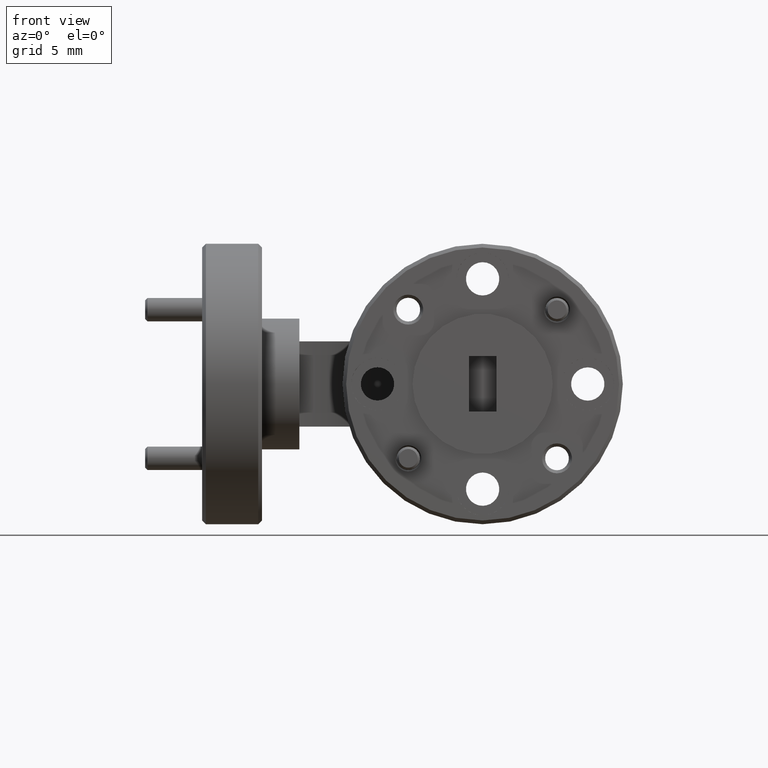
[diagram: clean part render]
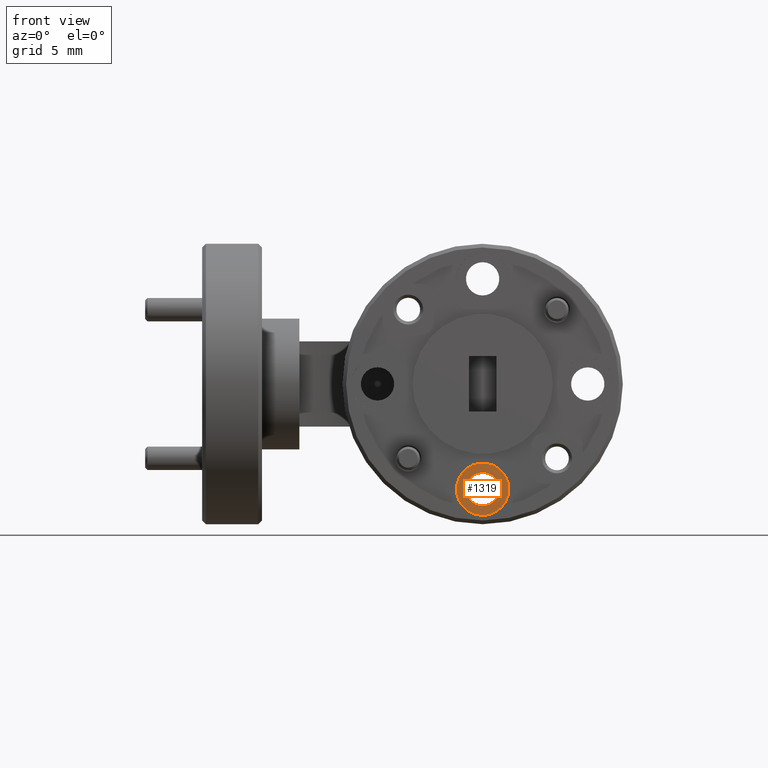
[diagram: same view with one face highlighted and labeled with its STEP entity id]
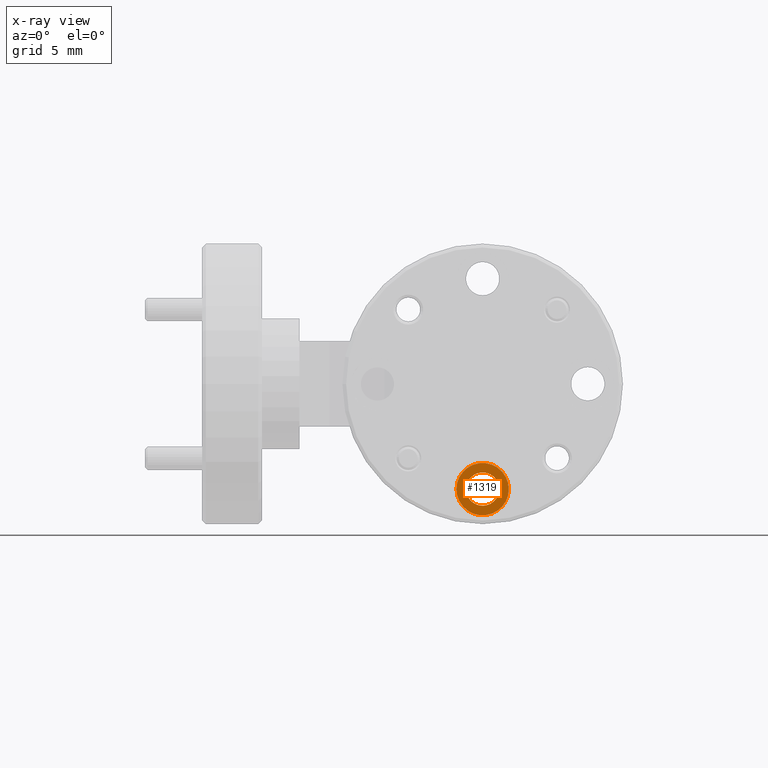
[diagram: x-ray of the same camera — body ghosted, the highlighted face saturated]
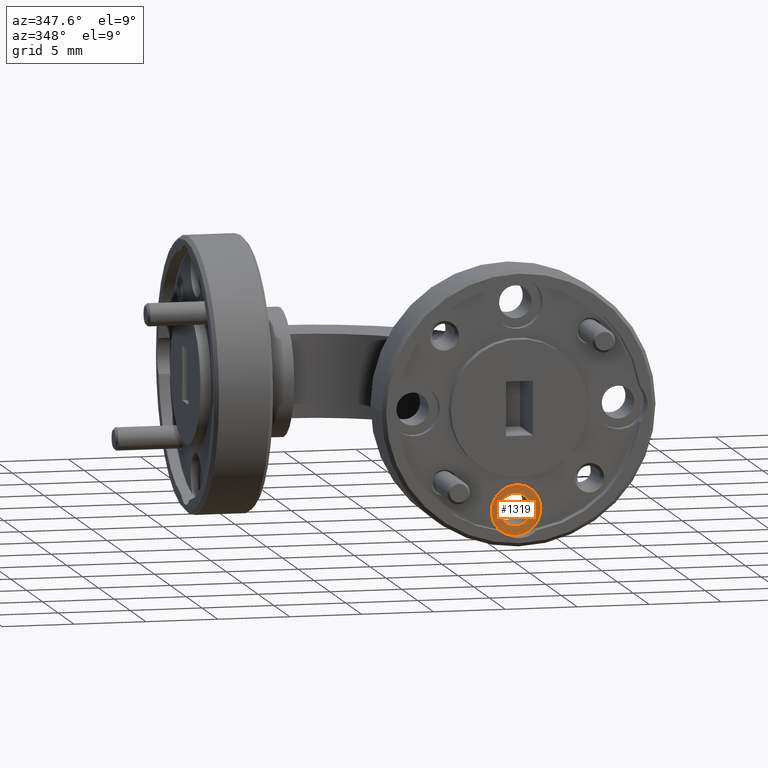
[diagram: same view with one face highlighted and labeled with its STEP entity id]
A machine part, front view. The second image highlights one B-rep face of the part: STEP entity #1319.
The next image is the same camera in x-ray: the body ghosted, the highlighted face saturated — about 0% of this face is hidden behind the body in this view.
A second angle (auxiliary view) of the same face is appended — the face is thin or edge-on in the first view.
In plain terms, the highlighted planar face has unit normal (0, -1, 0).
Its self-contained STEP definition (entity closure, byte-faithful):
#110 = CARTESIAN_POINT ( 'NONE',  ( -1.419202687138050978, -0.08294450464150114610, 0.2378134001413546861 ) ) ;
#294 = CARTESIAN_POINT ( 'NONE',  ( -1.349202687138050916, -0.08294450464150089630, 0.2378134001413546861 ) ) ;
#612 = PLANE ( 'NONE',  #7601 ) ;
#1274 = FACE_OUTER_BOUND ( 'NONE', #2143, .T. ) ;
#1319 = ADVANCED_FACE ( 'NONE', ( #3175, #1274 ), #612, .T. ) ;
#1451 = ORIENTED_EDGE ( 'NONE', *, *, #6643, .T. ) ;
#1707 = EDGE_LOOP ( 'NONE', ( #5590, #2792 ) ) ;
#1784 = CARTESIAN_POINT ( 'NONE',  ( -1.279202687138050631, -0.08294450464150066038, 0.2378134001413546861 ) ) ;
#2143 = EDGE_LOOP ( 'NONE', ( #1451, #3444 ) ) ;
#2165 = CARTESIAN_POINT ( 'NONE',  ( -1.349202687138050916, -0.08294450464150089630, 0.1933134001413549241 ) ) ;
#2273 = EDGE_CURVE ( 'NONE', #4234, #3713, #7138, .T. ) ;
#2293 = DIRECTION ( 'NONE',  ( 1.000000000000000000, 3.453178643676756517E-15, 0.000000000000000000 ) ) ;
#2371 = CIRCLE ( 'NONE', #7132, 0.07000000000000000666 ) ;
#2416 = CARTESIAN_POINT ( 'NONE',  ( -1.349202687138050916, -0.08294450464150089630, 0.2378134001413546861 ) ) ;
#2792 = ORIENTED_EDGE ( 'NONE', *, *, #2273, .F. ) ;
#2972 = DIRECTION ( 'NONE',  ( 0.000000000000000000, 0.000000000000000000, 1.000000000000000000 ) ) ;
#3175 = FACE_BOUND ( 'NONE', #1707, .T. ) ;
#3206 = DIRECTION ( 'NONE',  ( 3.491481338843132961E-15, -1.000000000000000000, 0.000000000000000000 ) ) ;
#3444 = ORIENTED_EDGE ( 'NONE', *, *, #6310, .T. ) ;
#3688 = DIRECTION ( 'NONE',  ( 0.000000000000000000, 0.000000000000000000, 1.000000000000000000 ) ) ;
#3713 = VERTEX_POINT ( 'NONE', #2165 ) ;
#3766 = AXIS2_PLACEMENT_3D ( 'NONE', #3781, #6651, #6085 ) ;
#3781 = CARTESIAN_POINT ( 'NONE',  ( -1.349202687138050916, -0.08294450464150089630, 0.2378134001413546861 ) ) ;
#3960 = EDGE_CURVE ( 'NONE', #3713, #4234, #7130, .T. ) ;
#4006 = AXIS2_PLACEMENT_3D ( 'NONE', #294, #4541, #5261 ) ;
#4085 = VERTEX_POINT ( 'NONE', #1784 ) ;
#4234 = VERTEX_POINT ( 'NONE', #4382 ) ;
#4382 = CARTESIAN_POINT ( 'NONE',  ( -1.349202687138050916, -0.08294450464150089630, 0.2823134001413544203 ) ) ;
#4541 = DIRECTION ( 'NONE',  ( 3.491481338843133355E-15, -1.000000000000000000, 0.000000000000000000 ) ) ;
#4751 = DIRECTION ( 'NONE',  ( 3.491481338843133355E-15, -1.000000000000000000, 0.000000000000000000 ) ) ;
#5099 = VERTEX_POINT ( 'NONE', #110 ) ;
#5261 = DIRECTION ( 'NONE',  ( 0.000000000000000000, 0.000000000000000000, 1.000000000000000000 ) ) ;
#5590 = ORIENTED_EDGE ( 'NONE', *, *, #3960, .F. ) ;
#6085 = DIRECTION ( 'NONE',  ( 1.000000000000000000, 3.453178643676756517E-15, 0.000000000000000000 ) ) ;
#6310 = EDGE_CURVE ( 'NONE', #5099, #4085, #7643, .T. ) ;
#6459 = DIRECTION ( 'NONE',  ( 3.491481338843133355E-15, -1.000000000000000000, 0.000000000000000000 ) ) ;
#6572 = CARTESIAN_POINT ( 'NONE',  ( -1.349202687138050916, -0.08294450464150089630, 0.2378134001413546861 ) ) ;
#6641 = AXIS2_PLACEMENT_3D ( 'NONE', #7690, #6459, #2293 ) ;
#6643 = EDGE_CURVE ( 'NONE', #4085, #5099, #2371, .T. ) ;
#6651 = DIRECTION ( 'NONE',  ( 3.491481338843133355E-15, -1.000000000000000000, 0.000000000000000000 ) ) ;
#7130 = CIRCLE ( 'NONE', #6641, 0.04449999999999975503 ) ;
#7132 = AXIS2_PLACEMENT_3D ( 'NONE', #6572, #4751, #2972 ) ;
#7138 = CIRCLE ( 'NONE', #3766, 0.04449999999999975503 ) ;
#7601 = AXIS2_PLACEMENT_3D ( 'NONE', #2416, #3206, #3688 ) ;
#7643 = CIRCLE ( 'NONE', #4006, 0.07000000000000000666 ) ;
#7690 = CARTESIAN_POINT ( 'NONE',  ( -1.349202687138050916, -0.08294450464150089630, 0.2378134001413546861 ) ) ;